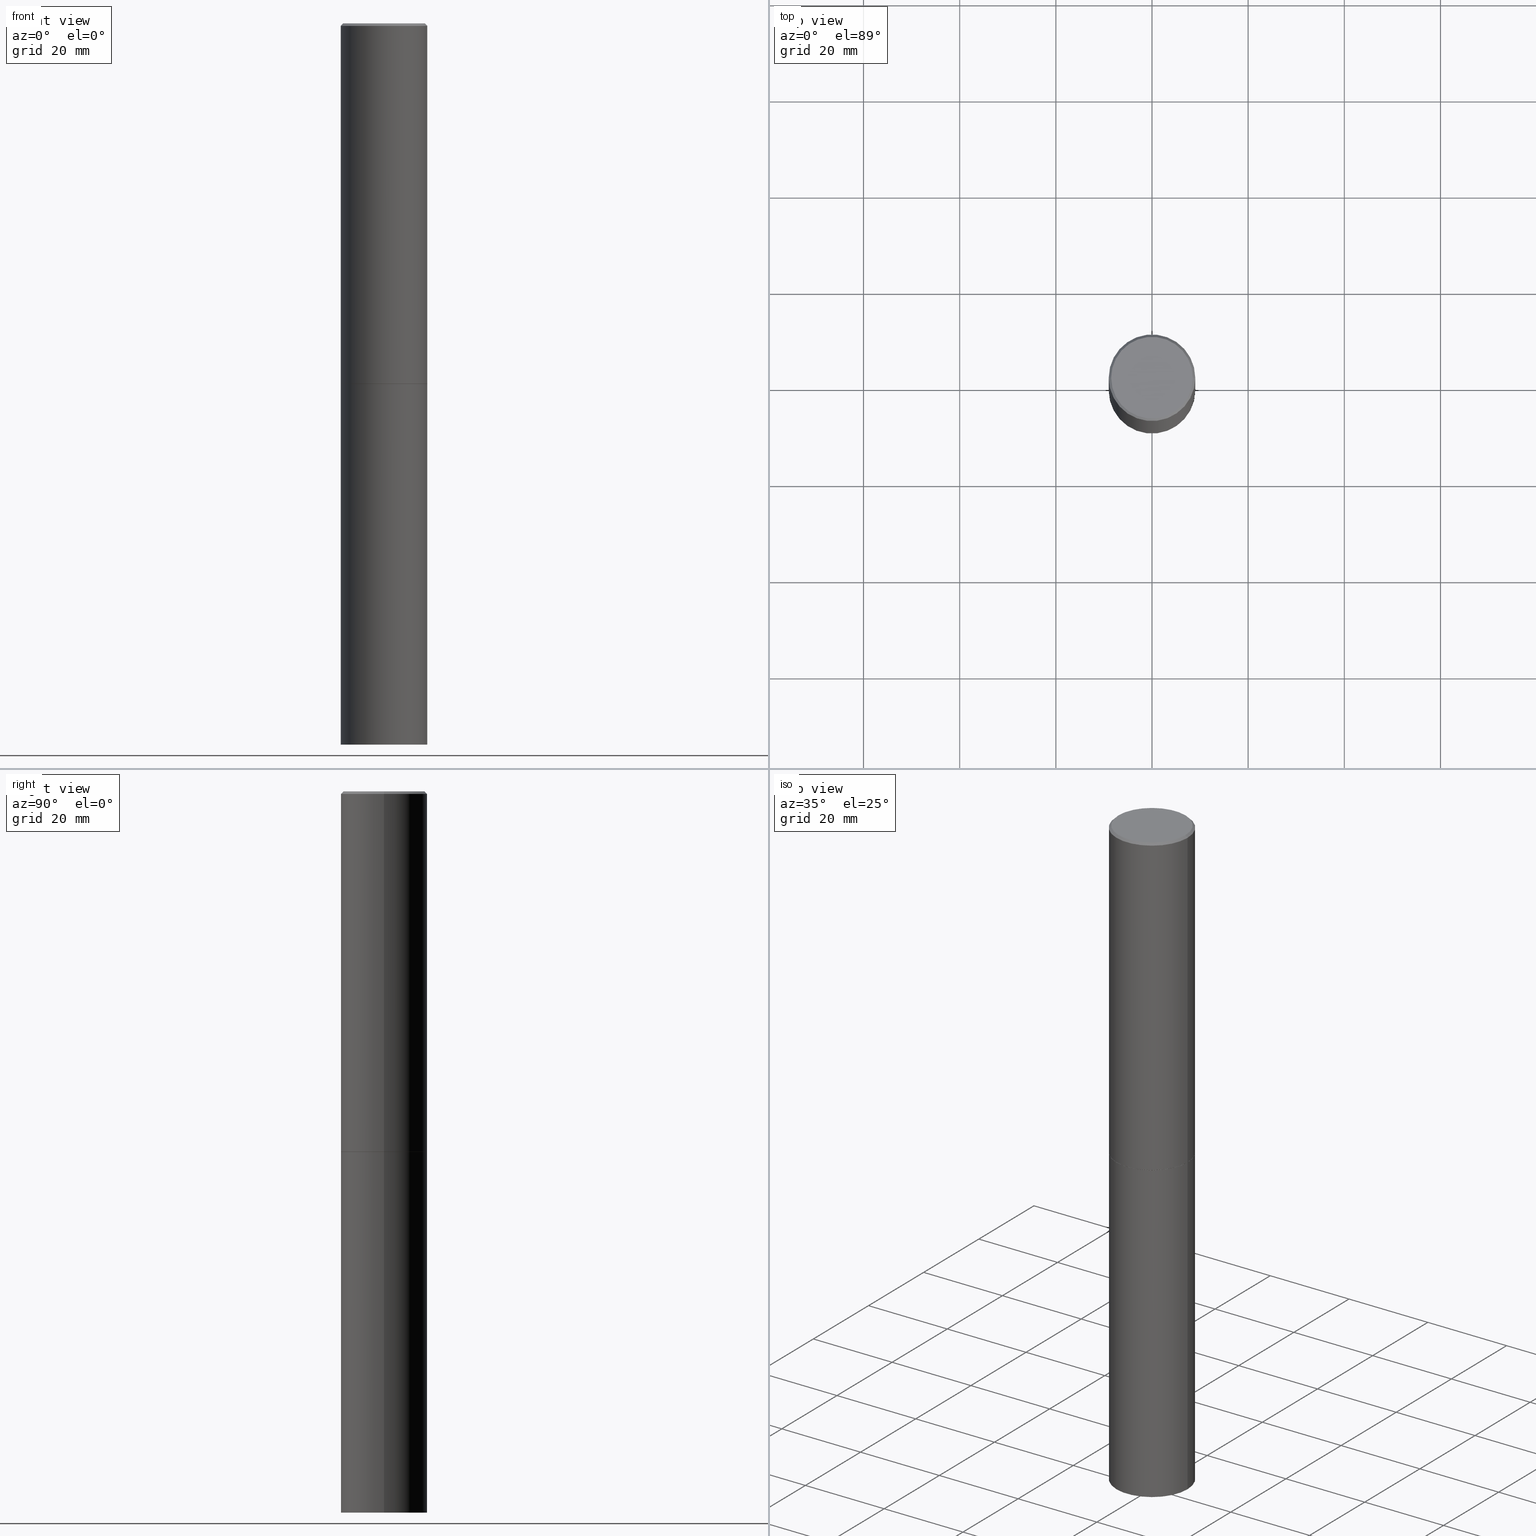
[diagram: canonical four-view strip — front | top / right | iso, engineering-drawing reading convention]
A machine part, canonical four-view strip (front | top / right | iso — engineering-drawing reading convention). The complete STEP part file that produces these views, byte-faithful:
ISO-10303-21;
HEADER;
FILE_DESCRIPTION (( 'STEP AP203' ),
    '1' );
FILE_NAME ('49437.STEP',
    '2024-02-28T20:59:01',
    ( '' ),
    ( '' ),
    'SwSTEP 2.0',
    'SolidWorks 2023',
    '' );
FILE_SCHEMA (( 'CONFIG_CONTROL_DESIGN' ));
ENDSEC;

DATA;
#1 = EDGE_LOOP ( 'NONE', ( #252, #2, #153, #246 ) ) ;
#2 = ORIENTED_EDGE ( 'NONE', *, *, #341, .T. ) ;
#3 = CARTESIAN_POINT ( 'NONE',  ( -0.3543499999999998873, 2.517808184165914208E-15, -1.743024649231825225E-29 ) ) ;
#4 = FACE_OUTER_BOUND ( 'NONE', #247, .T. ) ;
#5 = CARTESIAN_POINT ( 'NONE',  ( -1.043851414335219820E-46, 1.490343170380447200E-32, 4.268512490100411279E-18 ) ) ;
#6 = DIRECTION ( 'NONE',  ( 1.000000000000000000, -6.982962677686266711E-15, 0.000000000000000000 ) ) ;
#7 = ORIENTED_EDGE ( 'NONE', *, *, #16, .T. ) ;
#8 = AXIS2_PLACEMENT_3D ( 'NONE', #53, #347, #201 ) ;
#9 = CARTESIAN_POINT ( 'NONE',  ( 7.218290275216666916E-29, -1.030580546786331359E-14, -2.951700000000000212 ) ) ;
#10 = DATE_TIME_ROLE ( 'classification_date' ) ;
#11 = ORIENTED_EDGE ( 'NONE', *, *, #164, .T. ) ;
#12 = CC_DESIGN_PERSON_AND_ORGANIZATION_ASSIGNMENT ( #207, #41, ( #175 ) ) ;
#13 = EDGE_CURVE ( 'NONE', #225, #342, #227, .T. ) ;
#14 = CARTESIAN_POINT ( 'NONE',  ( 2.474412824838272661E-15, 0.3543499999999794037, -5.905500000000000860 ) ) ;
#15 = CALENDAR_DATE ( 2024, 28, 2 ) ;
#16 = EDGE_CURVE ( 'NONE', #217, #47, #309, .T. ) ;
#17 = AXIS2_PLACEMENT_3D ( 'NONE', #58, #287, #133 ) ;
#18 = CARTESIAN_POINT ( 'NONE',  ( 0.000000000000000000, 0.000000000000000000, 0.000000000000000000 ) ) ;
#19 = LOCAL_TIME ( 15, 59, 1.000000000000000000, #319 ) ;
#20 = DIRECTION ( 'NONE',  ( -2.445468806185136597E-29, 3.491481338843145583E-15, 1.000000000000000000 ) ) ;
#21 = ORIENTED_EDGE ( 'NONE', *, *, #96, .T. ) ;
#22 = EDGE_CURVE ( 'NONE', #225, #279, #332, .T. ) ;
#23 = ORIENTED_EDGE ( 'NONE', *, *, #77, .T. ) ;
#24 = ADVANCED_FACE ( 'NONE', ( #4 ), #222, .T. ) ;
#25 = DIRECTION ( 'NONE',  ( 1.000000000000000000, -6.982962677686271444E-15, 0.000000000000000000 ) ) ;
#26 = MANIFOLD_SOLID_BREP ( 'Body-Move/Copy2[1]', #66 ) ;
#27 = ORIENTED_EDGE ( 'NONE', *, *, #335, .F. ) ;
#28 = AXIS2_PLACEMENT_3D ( 'NONE', #353, #354, #232 ) ;
#29 = CYLINDRICAL_SURFACE ( 'NONE', #28, 0.3543499999999998873 ) ;
#30 = CYLINDRICAL_SURFACE ( 'NONE', #8, 0.3543499999999999983 ) ;
#31 = CARTESIAN_POINT ( 'NONE',  ( -0.3543499999999999983, -1.294631181370425968E-14, -2.952700000000000102 ) ) ;
#32 = MANIFOLD_SOLID_BREP ( 'Body-Move/Copy2[2]', #152 ) ;
#33 = DIRECTION ( 'NONE',  ( -1.000000000000000000, 6.982962677686265922E-15, -4.876176775795935793E-29 ) ) ;
#34 = PERSON_AND_ORGANIZATION_ROLE ( 'creator' ) ;
#35 = DIRECTION ( 'NONE',  ( 2.438088387897960049E-29, -3.491481338843145188E-15, -1.000000000000000000 ) ) ;
#36 = AXIS2_PLACEMENT_3D ( 'NONE', #285, #80, #250 ) ;
#37 = CC_DESIGN_DATE_AND_TIME_ASSIGNMENT ( #198, #313, ( #107 ) ) ;
#38 = CARTESIAN_POINT ( 'NONE',  ( 0.3533499999999999974, -1.277672681136259888E-14, -2.952700000000000546 ) ) ;
#39 = APPROVAL_STATUS ( 'not_yet_approved' ) ;
#40 = VECTOR ( 'NONE', #278, 39.37007874015748143 ) ;
#41 = PERSON_AND_ORGANIZATION_ROLE ( 'design_supplier' ) ;
#42 = CARTESIAN_POINT ( 'NONE',  ( 0.3543499999999999983, -2.309335587137632500E-14, -5.905499999999999972 ) ) ;
#43 = EDGE_LOOP ( 'NONE', ( #215, #128, #270, #157 ) ) ;
#44 = CIRCLE ( 'NONE', #249, 0.3543499999999996652 ) ;
#45 = ADVANCED_FACE ( 'NONE', ( #166 ), #349, .T. ) ;
#46 = ORIENTED_EDGE ( 'NONE', *, *, #322, .T. ) ;
#47 = VERTEX_POINT ( 'NONE', #316 ) ;
#48 = DIRECTION ( 'NONE',  ( 1.000000000000000000, -6.982962677686271444E-15, 0.000000000000000000 ) ) ;
#49 = APPROVAL_PERSON_ORGANIZATION ( #169, #173, #191 ) ;
#50 = ADVANCED_FACE ( 'NONE', ( #286 ), #192, .T. ) ;
#51 = ORIENTED_EDGE ( 'NONE', *, *, #322, .F. ) ;
#52 = ORIENTED_EDGE ( 'NONE', *, *, #122, .F. ) ;
#53 = CARTESIAN_POINT ( 'NONE',  ( 0.000000000000000000, 0.000000000000000000, 0.000000000000000000 ) ) ;
#54 = AXIS2_PLACEMENT_3D ( 'NONE', #5, #253, #76 ) ;
#55 = DIRECTION ( 'NONE',  ( 1.000000000000000000, -6.982962677686266711E-15, 4.876176775795935232E-29 ) ) ;
#56 = DIRECTION ( 'NONE',  ( 1.000000000000000000, -6.982962677686265922E-15, 4.876176775795935793E-29 ) ) ;
#57 = ADVANCED_FACE ( 'NONE', ( #336 ), #260, .F. ) ;
#58 = CARTESIAN_POINT ( 'NONE',  ( 7.220735744022853640E-29, -1.030929694920215659E-14, -2.952700000000000546 ) ) ;
#59 = APPROVAL_ROLE ( '' ) ;
#60 = DIRECTION ( 'NONE',  ( -2.445468806185136597E-29, 3.491481338843145583E-15, 1.000000000000000000 ) ) ;
#61 = DIRECTION ( 'NONE',  ( -2.445468806185136597E-29, 3.491481338843145583E-15, 1.000000000000000000 ) ) ;
#62 = AXIS2_PLACEMENT_3D ( 'NONE', #138, #163, #55 ) ;
#63 = PERSON_AND_ORGANIZATION ( #245, #159 ) ;
#64 = ADVANCED_FACE ( 'NONE', ( #114 ), #30, .T. ) ;
#65 = DIRECTION ( 'NONE',  ( -2.445468806185136597E-29, 3.491481338843145583E-15, 1.000000000000000000 ) ) ;
#66 = CLOSED_SHELL ( 'NONE', ( #145, #24, #57, #64 ) ) ;
#67 = ADVANCED_FACE ( 'NONE', ( #230 ), #29, .T. ) ;
#68 = DIRECTION ( 'NONE',  ( 1.000000000000000000, 0.000000000000000000, 0.000000000000000000 ) ) ;
#69 = DIRECTION ( 'NONE',  ( -2.445468806185136597E-29, 3.491481338843145583E-15, 1.000000000000000000 ) ) ;
#70 = AXIS2_PLACEMENT_3D ( 'NONE', #255, #60, #108 ) ;
#71 = EDGE_LOOP ( 'NONE', ( #11, #21, #188, #51 ) ) ;
#72 = ORIENTED_EDGE ( 'NONE', *, *, #181, .F. ) ;
#73 = CARTESIAN_POINT ( 'NONE',  ( 0.3543499999999999983, -1.278021829270144189E-14, -2.951700000000000212 ) ) ;
#74 = APPLICATION_PROTOCOL_DEFINITION ( 'international standard', 'config_control_design', 1994, #236 ) ;
#75 = LENGTH_MEASURE_WITH_UNIT ( LENGTH_MEASURE( 0.02539999999999999897 ), #343 );
#76 = DIRECTION ( 'NONE',  ( 1.000000000000000000, -6.982962677686266711E-15, 4.876061227832602160E-29 ) ) ;
#77 = EDGE_CURVE ( 'NONE', #105, #303, #256, .T. ) ;
#78 = AXIS2_PLACEMENT_3D ( 'NONE', #18, #273, #180 ) ;
#79 = ORIENTED_EDGE ( 'NONE', *, *, #147, .F. ) ;
#80 = DIRECTION ( 'NONE',  ( -2.445468806185136597E-29, 3.491481338843145583E-15, 1.000000000000000000 ) ) ;
#81 = CARTESIAN_POINT ( 'NONE',  ( 7.220735744022853640E-29, -1.030929694920215659E-14, -2.952700000000000546 ) ) ;
#82 = UNCERTAINTY_MEASURE_WITH_UNIT (LENGTH_MEASURE( 1.000000000000000082E-05 ), #102, 'distance_accuracy_value', 'NONE');
#83 =( NAMED_UNIT ( * ) PLANE_ANGLE_UNIT ( ) SI_UNIT ( $, .RADIAN. ) );
#84 = EDGE_CURVE ( 'NONE', #47, #357, #171, .T. ) ;
#85 = LINE ( 'NONE', #206, #238 ) ;
#86 = AXIS2_PLACEMENT_3D ( 'NONE', #189, #194, #258 ) ;
#87 = ORIENTED_EDGE ( 'NONE', *, *, #348, .F. ) ;
#88 = LOCAL_TIME ( 15, 59, 1.000000000000000000, #352 ) ;
#89 = APPROVAL_DATE_TIME ( #291, #173 ) ;
#90 = DATE_AND_TIME ( #346, #19 ) ;
#91 = AXIS2_PLACEMENT_3D ( 'NONE', #120, #69, #25 ) ;
#92 = VERTEX_POINT ( 'NONE', #148 ) ;
#93 = FACE_OUTER_BOUND ( 'NONE', #103, .T. ) ;
#94 = DIRECTION ( 'NONE',  ( -1.000000000000000000, 6.982962677686266711E-15, 0.000000000000000000 ) ) ;
#95 = VECTOR ( 'NONE', #137, 39.37007874015748143 ) ;
#96 = EDGE_CURVE ( 'NONE', #213, #303, #356, .T. ) ;
#97 = CARTESIAN_POINT ( 'NONE',  ( -0.3533499999999999974, -7.793295738045619809E-15, -2.952700000000000546 ) ) ;
#98 = ADVANCED_BREP_SHAPE_REPRESENTATION ( '49437', ( #26, #32, #209 ), #257 ) ;
#99 = CC_DESIGN_PERSON_AND_ORGANIZATION_ASSIGNMENT ( #144, #265, ( #272 ) ) ;
#100 = ORIENTED_EDGE ( 'NONE', *, *, #16, .F. ) ;
#101 = ORIENTED_EDGE ( 'NONE', *, *, #284, .T. ) ;
#102 =( CONVERSION_BASED_UNIT ( 'INCH', #75 ) LENGTH_UNIT ( ) NAMED_UNIT ( #170 ) );
#103 = EDGE_LOOP ( 'NONE', ( #100, #300, #338, #182 ) ) ;
#104 = DIRECTION ( 'NONE',  ( -2.445468806185136877E-29, 3.491481338843145188E-15, 1.000000000000000000 ) ) ;
#105 = VERTEX_POINT ( 'NONE', #325 ) ;
#106 = DIRECTION ( 'NONE',  ( -2.445468806185136877E-29, 3.491481338843145188E-15, 1.000000000000000000 ) ) ;
#107 = PRODUCT_DEFINITION ( 'UNKNOWN', '', #175, #203 ) ;
#108 = DIRECTION ( 'NONE',  ( 1.000000000000000000, -6.982962677686267499E-15, 0.000000000000000000 ) ) ;
#109 = AXIS2_PLACEMENT_3D ( 'NONE', #304, #125, #358 ) ;
#110 = EDGE_LOOP ( 'NONE', ( #23, #240 ) ) ;
#111 = PERSON_AND_ORGANIZATION ( #245, #159 ) ;
#112 = PLANE ( 'NONE',  #365 ) ;
#113 = APPROVAL_STATUS ( 'not_yet_approved' ) ;
#114 = FACE_OUTER_BOUND ( 'NONE', #187, .T. ) ;
#115 = CALENDAR_DATE ( 2024, 28, 2 ) ;
#116 = PERSON_AND_ORGANIZATION ( #245, #159 ) ;
#117 = CIRCLE ( 'NONE', #326, 0.3543499999999999983 ) ;
#118 = APPROVAL_DATE_TIME ( #229, #333 ) ;
#119 = VECTOR ( 'NONE', #106, 39.37007874015748143 ) ;
#120 = CARTESIAN_POINT ( 'NONE',  ( 1.444171603492632270E-28, -2.061894304653819197E-14, -5.905499999999999972 ) ) ;
#121 = DIRECTION ( 'NONE',  ( -2.445468806185136597E-29, 3.491481338843145583E-15, 1.000000000000000000 ) ) ;
#122 = EDGE_CURVE ( 'NONE', #342, #357, #306, .T. ) ;
#123 = AXIS2_PLACEMENT_3D ( 'NONE', #235, #65, #351 ) ;
#124 = CC_DESIGN_APPROVAL ( #219, ( #272 ) ) ;
#125 = DIRECTION ( 'NONE',  ( 2.445468806185136597E-29, -3.491481338843145583E-15, -1.000000000000000000 ) ) ;
#126 = EDGE_CURVE ( 'NONE', #217, #342, #85, .T. ) ;
#127 = ORIENTED_EDGE ( 'NONE', *, *, #348, .T. ) ;
#128 = ORIENTED_EDGE ( 'NONE', *, *, #147, .T. ) ;
#129 = FACE_OUTER_BOUND ( 'NONE', #330, .T. ) ;
#130 = CIRCLE ( 'NONE', #70, 0.3533499999999999974 ) ;
#131 = VERTEX_POINT ( 'NONE', #42 ) ;
#132 = LOCAL_TIME ( 15, 59, 1.000000000000000000, #261 ) ;
#133 = DIRECTION ( 'NONE',  ( 1.000000000000000000, -6.982962677686267499E-15, 0.000000000000000000 ) ) ;
#134 = EDGE_LOOP ( 'NONE', ( #155, #196, #52, #195 ) ) ;
#135 = DIRECTION ( 'NONE',  ( -2.438088387897960049E-29, 3.491481338843145188E-15, 1.000000000000000000 ) ) ;
#136 = ORIENTED_EDGE ( 'NONE', *, *, #193, .T. ) ;
#137 = DIRECTION ( 'NONE',  ( -2.445468806185136877E-29, 3.491481338843145188E-15, 1.000000000000000000 ) ) ;
#138 = CARTESIAN_POINT ( 'NONE',  ( 0.000000000000000000, 0.000000000000000000, 0.000000000000000000 ) ) ;
#139 = CARTESIAN_POINT ( 'NONE',  ( -0.3543499999999996652, 2.404583198061263029E-15, -0.02000000000000008021 ) ) ;
#140 = VECTOR ( 'NONE', #104, 39.37007874015748143 ) ;
#141 = DATE_AND_TIME ( #15, #88 ) ;
#142 = APPROVAL_PERSON_ORGANIZATION ( #63, #333, #59 ) ;
#143 = PERSON_AND_ORGANIZATION ( #245, #159 ) ;
#144 = PERSON_AND_ORGANIZATION ( #245, #159 ) ;
#145 = ADVANCED_FACE ( 'NONE', ( #146 ), #268, .T. ) ;
#146 = FACE_OUTER_BOUND ( 'NONE', #71, .T. ) ;
#147 = EDGE_CURVE ( 'NONE', #202, #279, #150, .T. ) ;
#148 = CARTESIAN_POINT ( 'NONE',  ( 0.3533499999999999974, -1.277672681136259888E-14, -2.952700000000000546 ) ) ;
#149 = AXIS2_PLACEMENT_3D ( 'NONE', #274, #121, #276 ) ;
#150 = LINE ( 'NONE', #241, #40 ) ;
#151 = CARTESIAN_POINT ( 'NONE',  ( 4.890937612370293302E-31, -6.982962677686318726E-17, -0.02000000000000008021 ) ) ;
#152 = CLOSED_SHELL ( 'NONE', ( #45, #67, #179, #176, #50, #254, #234, #328 ) ) ;
#153 = ORIENTED_EDGE ( 'NONE', *, *, #13, .T. ) ;
#154 = ORIENTED_EDGE ( 'NONE', *, *, #126, .F. ) ;
#155 = ORIENTED_EDGE ( 'NONE', *, *, #22, .T. ) ;
#156 = LINE ( 'NONE', #281, #95 ) ;
#157 = ORIENTED_EDGE ( 'NONE', *, *, #361, .F. ) ;
#158 = CIRCLE ( 'NONE', #17, 0.3533499999999999974 ) ;
#159 = ORGANIZATION ( 'UNSPECIFIED', 'UNSPECIFIED', '' ) ;
#160 = APPLICATION_PROTOCOL_DEFINITION ( 'international standard', 'config_control_design', 1994, #299 ) ;
#161 = DIRECTION ( 'NONE',  ( 1.000000000000000000, -6.982962677686267499E-15, 0.000000000000000000 ) ) ;
#162 = CALENDAR_DATE ( 2024, 28, 2 ) ;
#163 = DIRECTION ( 'NONE',  ( -2.445468806185136597E-29, 3.491481338843145583E-15, 1.000000000000000000 ) ) ;
#164 = EDGE_CURVE ( 'NONE', #131, #213, #243, .T. ) ;
#165 = FACE_OUTER_BOUND ( 'NONE', #334, .T. ) ;
#166 = FACE_OUTER_BOUND ( 'NONE', #43, .T. ) ;
#167 = COORDINATED_UNIVERSAL_TIME_OFFSET ( 5, 0, .BEHIND. ) ;
#168 = CARTESIAN_POINT ( 'NONE',  ( 4.890937612370293302E-31, -6.982962677686318726E-17, -0.02000000000000008021 ) ) ;
#169 = PERSON_AND_ORGANIZATION ( #245, #159 ) ;
#170 = DIMENSIONAL_EXPONENTS ( 1.000000000000000000, 0.000000000000000000, 0.000000000000000000, 0.000000000000000000, 0.000000000000000000, 0.000000000000000000, 0.000000000000000000 ) ;
#171 = LINE ( 'NONE', #321, #204 ) ;
#172 = CONICAL_SURFACE ( 'NONE', #109, 0.3543499999999996652, 0.7853981633974459475 ) ;
#173 = APPROVAL ( #242, 'UNSPECIFIED' ) ;
#174 = AXIS2_PLACEMENT_3D ( 'NONE', #190, #61, #224 ) ;
#175 = PRODUCT_DEFINITION_FORMATION_WITH_SPECIFIED_SOURCE ( 'ANY', '', #178, .NOT_KNOWN. ) ;
#176 = ADVANCED_FACE ( 'NONE', ( #129 ), #172, .T. ) ;
#177 = DIRECTION ( 'NONE',  ( -2.445468806185136597E-29, 3.491481338843145583E-15, 1.000000000000000000 ) ) ;
#178 = PRODUCT ( '49437', '49437', '', ( #337 ) ) ;
#179 = ADVANCED_FACE ( 'NONE', ( #93 ), #283, .T. ) ;
#180 = DIRECTION ( 'NONE',  ( 1.000000000000000000, -6.982962677686266711E-15, 4.876176775795935793E-29 ) ) ;
#181 = EDGE_CURVE ( 'NONE', #213, #131, #305, .T. ) ;
#182 = ORIENTED_EDGE ( 'NONE', *, *, #84, .F. ) ;
#183 = FACE_OUTER_BOUND ( 'NONE', #307, .T. ) ;
#184 = ORIENTED_EDGE ( 'NONE', *, *, #164, .F. ) ;
#185 = ORIENTED_EDGE ( 'NONE', *, *, #186, .F. ) ;
#186 = EDGE_CURVE ( 'NONE', #303, #105, #264, .T. ) ;
#187 = EDGE_LOOP ( 'NONE', ( #297, #275, #46, #185 ) ) ;
#188 = ORIENTED_EDGE ( 'NONE', *, *, #77, .F. ) ;
#189 = CARTESIAN_POINT ( 'NONE',  ( 2.334753571284400520E-15, 0.3343499999999996475, -1.165242529397154385E-15 ) ) ;
#190 = CARTESIAN_POINT ( 'NONE',  ( 7.218290275216666916E-29, -1.030580546786331359E-14, -2.951700000000000212 ) ) ;
#191 = APPROVAL_ROLE ( '' ) ;
#192 = CYLINDRICAL_SURFACE ( 'NONE', #62, 0.3543499999999998873 ) ;
#193 = EDGE_CURVE ( 'NONE', #47, #217, #324, .T. ) ;
#194 = DIRECTION ( 'NONE',  ( 2.438088387897960049E-29, -3.491481338843145188E-15, -1.000000000000000000 ) ) ;
#195 = ORIENTED_EDGE ( 'NONE', *, *, #13, .F. ) ;
#196 = ORIENTED_EDGE ( 'NONE', *, *, #267, .T. ) ;
#197 = DIRECTION ( 'NONE',  ( -2.445468806185136597E-29, 3.491481338843145583E-15, 1.000000000000000000 ) ) ;
#198 = DATE_AND_TIME ( #115, #132 ) ;
#199 =( NAMED_UNIT ( * ) SI_UNIT ( $, .STERADIAN. ) SOLID_ANGLE_UNIT ( ) );
#200 = APPROVAL_DATE_TIME ( #90, #219 ) ;
#201 = DIRECTION ( 'NONE',  ( 1.000000000000000000, -6.982962677686266711E-15, 4.876176775795935793E-29 ) ) ;
#202 = VERTEX_POINT ( 'NONE', #97 ) ;
#203 = DESIGN_CONTEXT ( 'detailed design', #236, 'design' ) ;
#204 = VECTOR ( 'NONE', #239, 39.37007874015748143 ) ;
#205 = APPROVAL_ROLE ( '' ) ;
#206 = CARTESIAN_POINT ( 'NONE',  ( 0.3543499999999996652, -2.500847092287203323E-15, -0.02000000000000008021 ) ) ;
#207 = PERSON_AND_ORGANIZATION ( #245, #159 ) ;
#208 = AXIS2_PLACEMENT_3D ( 'NONE', #244, #177, #329 ) ;
#209 = AXIS2_PLACEMENT_3D ( 'NONE', #263, #293, #68 ) ;
#210 = DIRECTION ( 'NONE',  ( -2.445468806185136877E-29, 3.491481338843145188E-15, 1.000000000000000000 ) ) ;
#211 = DIRECTION ( 'NONE',  ( 2.445468806185136597E-29, -3.491481338843145583E-15, -1.000000000000000000 ) ) ;
#212 = DIRECTION ( 'NONE',  ( -2.445468806185136597E-29, 3.491481338843145583E-15, 1.000000000000000000 ) ) ;
#213 = VERTEX_POINT ( 'NONE', #214 ) ;
#214 = CARTESIAN_POINT ( 'NONE',  ( -0.3543499999999999983, -1.294631181370425968E-14, -5.905499999999999972 ) ) ;
#215 = ORIENTED_EDGE ( 'NONE', *, *, #335, .T. ) ;
#216 = VECTOR ( 'NONE', #210, 39.37007874015748143 ) ;
#217 = VERTEX_POINT ( 'NONE', #331 ) ;
#218 = FACE_OUTER_BOUND ( 'NONE', #220, .T. ) ;
#219 = APPROVAL ( #113, 'UNSPECIFIED' ) ;
#220 = EDGE_LOOP ( 'NONE', ( #79, #127, #359, #262 ) ) ;
#221 = LINE ( 'NONE', #38, #350 ) ;
#222 = PLANE ( 'NONE',  #360 ) ;
#223 = CARTESIAN_POINT ( 'NONE',  ( 7.220735744022853640E-29, -1.030929694920215659E-14, -2.952700000000000546 ) ) ;
#224 = DIRECTION ( 'NONE',  ( 1.000000000000000000, -6.982962677686265922E-15, 0.000000000000000000 ) ) ;
#225 = VERTEX_POINT ( 'NONE', #73 ) ;
#226 = CARTESIAN_POINT ( 'NONE',  ( 0.3543499999999996652, -2.500847092287203323E-15, -0.02000000000000008021 ) ) ;
#227 = LINE ( 'NONE', #251, #119 ) ;
#228 = DIRECTION ( 'NONE',  ( 1.000000000000000000, -6.982962677686265922E-15, 0.000000000000000000 ) ) ;
#229 = DATE_AND_TIME ( #162, #231 ) ;
#230 = FACE_OUTER_BOUND ( 'NONE', #134, .T. ) ;
#231 = LOCAL_TIME ( 15, 59, 1.000000000000000000, #288 ) ;
#232 = DIRECTION ( 'NONE',  ( 1.000000000000000000, -6.982962677686266711E-15, 4.876176775795935232E-29 ) ) ;
#233 = PERSON_AND_ORGANIZATION_ROLE ( 'design_owner' ) ;
#234 = ADVANCED_FACE ( 'NONE', ( #183 ), #112, .F. ) ;
#235 = CARTESIAN_POINT ( 'NONE',  ( 7.220735744022852519E-29, -1.030929694920215502E-14, -2.952700000000000102 ) ) ;
#236 = APPLICATION_CONTEXT ( 'configuration controlled 3d designs of mechanical parts and assemblies' ) ;
#237 = ORIENTED_EDGE ( 'NONE', *, *, #193, .F. ) ;
#238 = VECTOR ( 'NONE', #320, 39.37007874015748143 ) ;
#239 = DIRECTION ( 'NONE',  ( -0.7071067811865459074, 2.468850131082239706E-15, -0.7071067811865492381 ) ) ;
#240 = ORIENTED_EDGE ( 'NONE', *, *, #186, .T. ) ;
#241 = CARTESIAN_POINT ( 'NONE',  ( -0.3533499999999999974, -7.798594192393843789E-15, -2.952700000000000546 ) ) ;
#242 = APPROVAL_STATUS ( 'not_yet_approved' ) ;
#243 = CIRCLE ( 'NONE', #91, 0.3543499999999999983 ) ;
#244 = CARTESIAN_POINT ( 'NONE',  ( 7.220735744022852519E-29, -1.030929694920215502E-14, -2.952700000000000102 ) ) ;
#245 = PERSON ( 'UNSPECIFIED', 'UNSPECIFIED', 'UNSPECIFIED', ('UNSPECIFIED'), ('UNSPECIFIED'), ('UNSPECIFIED') ) ;
#246 = ORIENTED_EDGE ( 'NONE', *, *, #284, .F. ) ;
#247 = EDGE_LOOP ( 'NONE', ( #184, #72 ) ) ;
#248 = DIRECTION ( 'NONE',  ( 0.7071067811864267805, -2.468850131080992517E-15, 0.7071067811866682540 ) ) ;
#249 = AXIS2_PLACEMENT_3D ( 'NONE', #308, #364, #6 ) ;
#250 = DIRECTION ( 'NONE',  ( 1.000000000000000000, -6.982962677686267499E-15, 0.000000000000000000 ) ) ;
#251 = CARTESIAN_POINT ( 'NONE',  ( 0.3543499999999998873, -2.474412824838127905E-15, 1.727873240503289188E-29 ) ) ;
#252 = ORIENTED_EDGE ( 'NONE', *, *, #267, .F. ) ;
#253 = DIRECTION ( 'NONE',  ( -2.445468806185136597E-29, 3.491481338843145583E-15, 1.000000000000000000 ) ) ;
#254 = ADVANCED_FACE ( 'NONE', ( #218 ), #355, .T. ) ;
#255 = CARTESIAN_POINT ( 'NONE',  ( 7.220735744022853640E-29, -1.030929694920215659E-14, -2.952700000000000546 ) ) ;
#256 = CIRCLE ( 'NONE', #123, 0.3543499999999999983 ) ;
#257 =( GEOMETRIC_REPRESENTATION_CONTEXT ( 3 ) GLOBAL_UNCERTAINTY_ASSIGNED_CONTEXT ( ( #82 ) ) GLOBAL_UNIT_ASSIGNED_CONTEXT ( ( #102, #83, #199 ) ) REPRESENTATION_CONTEXT ( 'NONE', 'WORKASPACE' ) );
#258 = DIRECTION ( 'NONE',  ( -1.000000000000000000, 6.982962677686265922E-15, -4.876176775795935793E-29 ) ) ;
#259 = PERSON_AND_ORGANIZATION ( #245, #159 ) ;
#260 = PLANE ( 'NONE',  #294 ) ;
#261 = COORDINATED_UNIVERSAL_TIME_OFFSET ( 5, 0, .BEHIND. ) ;
#262 = ORIENTED_EDGE ( 'NONE', *, *, #341, .F. ) ;
#263 = CARTESIAN_POINT ( 'NONE',  ( 0.000000000000000000, 0.000000000000000000, 0.000000000000000000 ) ) ;
#264 = CIRCLE ( 'NONE', #208, 0.3543499999999999983 ) ;
#265 = PERSON_AND_ORGANIZATION_ROLE ( 'classification_officer' ) ;
#266 = DIRECTION ( 'NONE',  ( 1.000000000000000000, -6.982962677686266711E-15, 0.000000000000000000 ) ) ;
#267 = EDGE_CURVE ( 'NONE', #279, #357, #314, .T. ) ;
#268 = CYLINDRICAL_SURFACE ( 'NONE', #78, 0.3543499999999999983 ) ;
#269 = CC_DESIGN_PERSON_AND_ORGANIZATION_ASSIGNMENT ( #259, #34, ( #175 ) ) ;
#270 = ORIENTED_EDGE ( 'NONE', *, *, #22, .F. ) ;
#271 = AXIS2_PLACEMENT_3D ( 'NONE', #81, #289, #161 ) ;
#272 = SECURITY_CLASSIFICATION ( '', '', #292 ) ;
#273 = DIRECTION ( 'NONE',  ( -2.445468806185136597E-29, 3.491481338843145583E-15, 1.000000000000000000 ) ) ;
#274 = CARTESIAN_POINT ( 'NONE',  ( -1.043851414335219820E-46, 1.490343170380447200E-32, 4.268512490100411279E-18 ) ) ;
#275 = ORIENTED_EDGE ( 'NONE', *, *, #181, .T. ) ;
#276 = DIRECTION ( 'NONE',  ( 1.000000000000000000, -6.982962677686266711E-15, 4.876061227832602160E-29 ) ) ;
#277 = CC_DESIGN_APPROVAL ( #333, ( #175 ) ) ;
#278 = DIRECTION ( 'NONE',  ( -0.7071067811864267805, 7.493145998869918709E-15, 0.7071067811866682540 ) ) ;
#279 = VERTEX_POINT ( 'NONE', #310 ) ;
#280 = ORIENTED_EDGE ( 'NONE', *, *, #84, .T. ) ;
#281 = CARTESIAN_POINT ( 'NONE',  ( 0.3543499999999999983, -2.474412824838128694E-15, 1.727873240503289749E-29 ) ) ;
#282 = CARTESIAN_POINT ( 'NONE',  ( 2.474412824838200480E-15, 0.3543499999999896732, -2.952700000000000990 ) ) ;
#283 = CONICAL_SURFACE ( 'NONE', #301, 0.3543499999999996652, 0.7853981633974459475 ) ;
#284 = EDGE_CURVE ( 'NONE', #357, #342, #44, .T. ) ;
#285 = CARTESIAN_POINT ( 'NONE',  ( 7.220735744022853640E-29, -1.030929694920215659E-14, -2.952700000000000546 ) ) ;
#286 = FACE_OUTER_BOUND ( 'NONE', #1, .T. ) ;
#287 = DIRECTION ( 'NONE',  ( -2.445468806185136597E-29, 3.491481338843145583E-15, 1.000000000000000000 ) ) ;
#288 = COORDINATED_UNIVERSAL_TIME_OFFSET ( 5, 0, .BEHIND. ) ;
#289 = DIRECTION ( 'NONE',  ( -2.445468806185136597E-29, 3.491481338843145583E-15, 1.000000000000000000 ) ) ;
#290 = CC_DESIGN_SECURITY_CLASSIFICATION ( #272, ( #175 ) ) ;
#291 = DATE_AND_TIME ( #344, #340 ) ;
#292 = SECURITY_CLASSIFICATION_LEVEL ( 'unclassified' ) ;
#293 = DIRECTION ( 'NONE',  ( 0.000000000000000000, 0.000000000000000000, 1.000000000000000000 ) ) ;
#294 = AXIS2_PLACEMENT_3D ( 'NONE', #282, #35, #33 ) ;
#295 = CC_DESIGN_APPROVAL ( #173, ( #107 ) ) ;
#296 = CARTESIAN_POINT ( 'NONE',  ( -0.3543499999999999983, 2.517808184165914997E-15, -1.743024649231826066E-29 ) ) ;
#297 = ORIENTED_EDGE ( 'NONE', *, *, #96, .F. ) ;
#298 = PRODUCT_DEFINITION_SHAPE ( 'NONE', 'NONE',  #107 ) ;
#299 = APPLICATION_CONTEXT ( 'configuration controlled 3d designs of mechanical parts and assemblies' ) ;
#300 = ORIENTED_EDGE ( 'NONE', *, *, #126, .T. ) ;
#301 = AXIS2_PLACEMENT_3D ( 'NONE', #151, #211, #94 ) ;
#302 = CC_DESIGN_DATE_AND_TIME_ASSIGNMENT ( #141, #10, ( #272 ) ) ;
#303 = VERTEX_POINT ( 'NONE', #31 ) ;
#304 = CARTESIAN_POINT ( 'NONE',  ( 4.890937612370293302E-31, -6.982962677686318726E-17, -0.02000000000000008021 ) ) ;
#305 = CIRCLE ( 'NONE', #318, 0.3543499999999999983 ) ;
#306 = CIRCLE ( 'NONE', #339, 0.3543499999999996652 ) ;
#307 = EDGE_LOOP ( 'NONE', ( #27, #87 ) ) ;
#308 = CARTESIAN_POINT ( 'NONE',  ( 4.890937612370293302E-31, -6.982962677686318726E-17, -0.02000000000000008021 ) ) ;
#309 = CIRCLE ( 'NONE', #54, 0.3343499999999996475 ) ;
#310 = CARTESIAN_POINT ( 'NONE',  ( -0.3543499999999999983, -2.670009363154171868E-15, -2.951700000000000212 ) ) ;
#311 = DIRECTION ( 'NONE',  ( 2.438088387897960049E-29, -3.491481338843145188E-15, -1.000000000000000000 ) ) ;
#312 = PLANE ( 'NONE',  #86 ) ;
#313 = DATE_TIME_ROLE ( 'creation_date' ) ;
#314 = LINE ( 'NONE', #3, #140 ) ;
#315 = SHAPE_DEFINITION_REPRESENTATION ( #298, #98 ) ;
#316 = CARTESIAN_POINT ( 'NONE',  ( -0.3343499999999996475, 2.369668384672832169E-15, 4.268512490083961526E-18 ) ) ;
#317 = PRODUCT_RELATED_PRODUCT_CATEGORY ( 'detail', '', ( #178 ) ) ;
#318 = AXIS2_PLACEMENT_3D ( 'NONE', #327, #212, #48 ) ;
#319 = COORDINATED_UNIVERSAL_TIME_OFFSET ( 5, 0, .BEHIND. ) ;
#320 = DIRECTION ( 'NONE',  ( 0.7071067811865459074, -7.319954787623251312E-15, -0.7071067811865492381 ) ) ;
#321 = CARTESIAN_POINT ( 'NONE',  ( -0.3543499999999996652, 2.404583198061263029E-15, -0.02000000000000008021 ) ) ;
#322 = EDGE_CURVE ( 'NONE', #131, #105, #156, .T. ) ;
#323 = PERSON_AND_ORGANIZATION_ROLE ( 'creator' ) ;
#324 = CIRCLE ( 'NONE', #149, 0.3343499999999996475 ) ;
#325 = CARTESIAN_POINT ( 'NONE',  ( 0.3543499999999999983, -1.278370977404028332E-14, -2.952700000000000102 ) ) ;
#326 = AXIS2_PLACEMENT_3D ( 'NONE', #9, #197, #228 ) ;
#327 = CARTESIAN_POINT ( 'NONE',  ( 1.444171603492632270E-28, -2.061894304653819197E-14, -5.905499999999999972 ) ) ;
#328 = ADVANCED_FACE ( 'NONE', ( #165 ), #312, .F. ) ;
#329 = DIRECTION ( 'NONE',  ( 1.000000000000000000, -6.982962677686265922E-15, 0.000000000000000000 ) ) ;
#330 = EDGE_LOOP ( 'NONE', ( #154, #237, #280, #101 ) ) ;
#331 = CARTESIAN_POINT ( 'NONE',  ( 0.3343499999999996475, -2.397327298921056737E-15, 4.268512490116958099E-18 ) ) ;
#332 = CIRCLE ( 'NONE', #174, 0.3543499999999999983 ) ;
#333 = APPROVAL ( #39, 'UNSPECIFIED' ) ;
#334 = EDGE_LOOP ( 'NONE', ( #136, #7 ) ) ;
#335 = EDGE_CURVE ( 'NONE', #92, #202, #130, .T. ) ;
#336 = FACE_OUTER_BOUND ( 'NONE', #110, .T. ) ;
#337 = MECHANICAL_CONTEXT ( 'NONE', #299, 'mechanical' ) ;
#338 = ORIENTED_EDGE ( 'NONE', *, *, #122, .T. ) ;
#339 = AXIS2_PLACEMENT_3D ( 'NONE', #168, #20, #266 ) ;
#340 = LOCAL_TIME ( 15, 59, 1.000000000000000000, #167 ) ;
#341 = EDGE_CURVE ( 'NONE', #279, #225, #117, .T. ) ;
#342 = VERTEX_POINT ( 'NONE', #226 ) ;
#343 =( LENGTH_UNIT ( ) NAMED_UNIT ( * ) SI_UNIT ( $, .METRE. ) );
#344 = CALENDAR_DATE ( 2024, 28, 2 ) ;
#345 = DIRECTION ( 'NONE',  ( -1.000000000000000000, 6.982962677686265922E-15, -4.876176775795935793E-29 ) ) ;
#346 = CALENDAR_DATE ( 2024, 28, 2 ) ;
#347 = DIRECTION ( 'NONE',  ( -2.445468806185136597E-29, 3.491481338843145583E-15, 1.000000000000000000 ) ) ;
#348 = EDGE_CURVE ( 'NONE', #202, #92, #158, .T. ) ;
#349 = CONICAL_SURFACE ( 'NONE', #271, 0.3533499999999999974, 0.7853981633972775267 ) ;
#350 = VECTOR ( 'NONE', #248, 39.37007874015748143 ) ;
#351 = DIRECTION ( 'NONE',  ( 1.000000000000000000, -6.982962677686265922E-15, 0.000000000000000000 ) ) ;
#352 = COORDINATED_UNIVERSAL_TIME_OFFSET ( 5, 0, .BEHIND. ) ;
#353 = CARTESIAN_POINT ( 'NONE',  ( 0.000000000000000000, 0.000000000000000000, 0.000000000000000000 ) ) ;
#354 = DIRECTION ( 'NONE',  ( -2.445468806185136597E-29, 3.491481338843145583E-15, 1.000000000000000000 ) ) ;
#355 = CONICAL_SURFACE ( 'NONE', #36, 0.3533499999999999974, 0.7853981633972775267 ) ;
#356 = LINE ( 'NONE', #296, #216 ) ;
#357 = VERTEX_POINT ( 'NONE', #139 ) ;
#358 = DIRECTION ( 'NONE',  ( -1.000000000000000000, 6.982962677686266711E-15, 0.000000000000000000 ) ) ;
#359 = ORIENTED_EDGE ( 'NONE', *, *, #361, .T. ) ;
#360 = AXIS2_PLACEMENT_3D ( 'NONE', #14, #311, #345 ) ;
#361 = EDGE_CURVE ( 'NONE', #92, #225, #221, .T. ) ;
#362 = CC_DESIGN_PERSON_AND_ORGANIZATION_ASSIGNMENT ( #111, #233, ( #178 ) ) ;
#363 = CC_DESIGN_PERSON_AND_ORGANIZATION_ASSIGNMENT ( #143, #323, ( #107 ) ) ;
#364 = DIRECTION ( 'NONE',  ( -2.445468806185136597E-29, 3.491481338843145583E-15, 1.000000000000000000 ) ) ;
#365 = AXIS2_PLACEMENT_3D ( 'NONE', #223, #135, #56 ) ;
#366 = APPROVAL_PERSON_ORGANIZATION ( #116, #219, #205 ) ;
ENDSEC;
END-ISO-10303-21;
